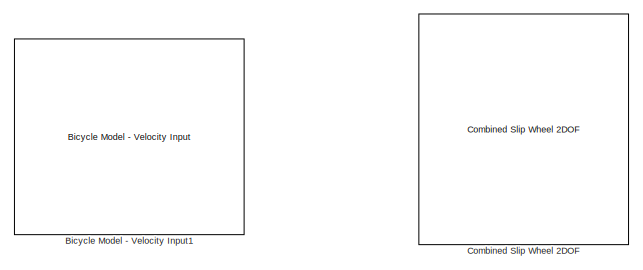
[diagram: root canvas - part 1/8, top center region]
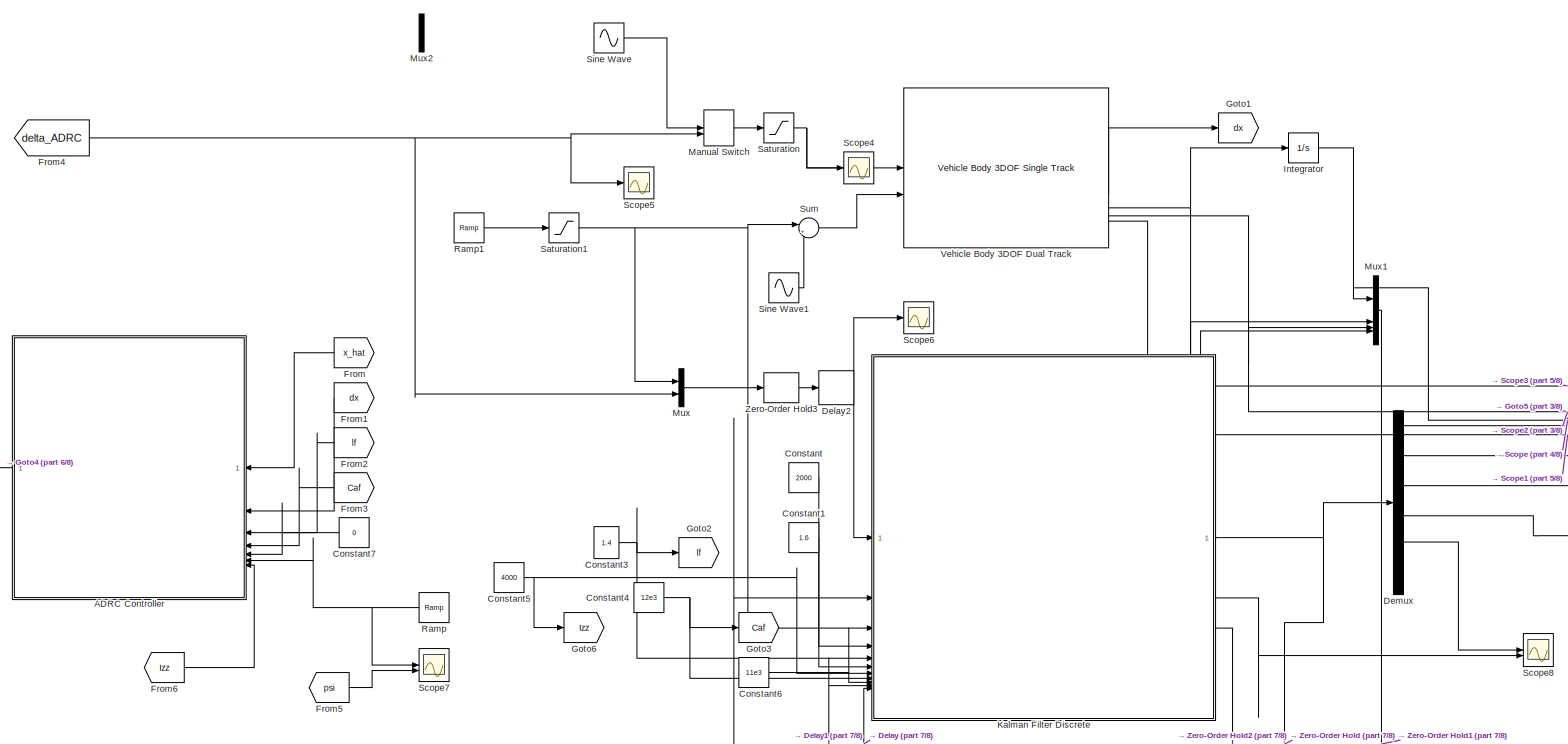
[diagram: root canvas - part 2/8, full width, middle band]
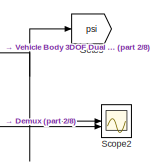
[diagram: root canvas - part 3/8, middle right region]
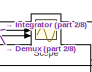
[diagram: root canvas - part 4/8, middle right region]
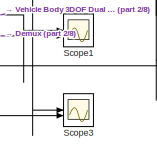
[diagram: root canvas - part 5/8, middle right region]
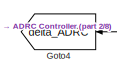
[diagram: root canvas - part 6/8, middle left region]
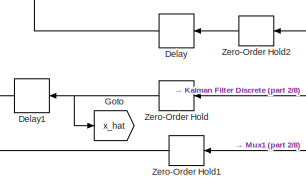
[diagram: root canvas - part 7/8, bottom center region]
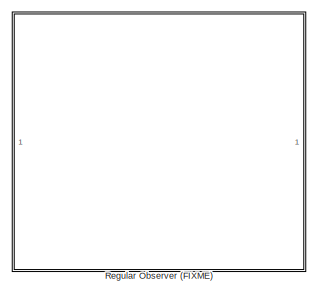
[diagram: root canvas - part 8/8, bottom center region]
MODEL slx_97108f222ab0
KIND model
CONFIG AbsTol = auto
CONFIG EnableMultiTasking = off
CONFIG FixedStep = auto
CONFIG MaxStep = auto
CONFIG MinStep = auto
CONFIG RelTol = 1e-3
CONFIG SampleTimeConstraint = Unconstrained
CONFIG SolverName = VariableStepAuto
CONFIG StartTime = 0.0
CONFIG StopTime = 100
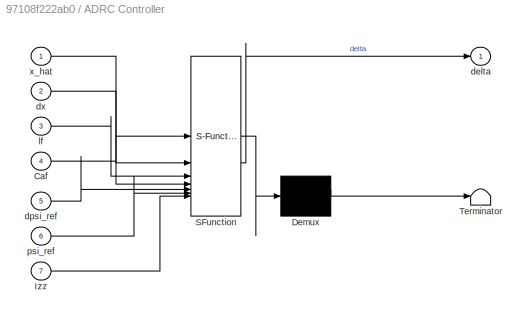
BLOCK [SubSystem] ADRC Controller
  ErrorFcn = Stateflow.Translate.translate
  PermitHierarchicalResolution = ExplicitOnly
  SFBlockType = MATLAB Function
  TreatAsAtomicUnit = on
BLOCK [Demux] ADRC Controller/ Demux 
  Outputs = 1
BLOCK [S-Function] ADRC Controller/ SFunction 
  EnableBusSupport = on
  FunctionName = sf_sfun
  PortCounts = [7 2]
  SFcnIsStateOwnerBlock = off
  SFunctionDeploymentMode = off
  Tag = Stateflow S-Function 3
BLOCK [Terminator] ADRC Controller/ Terminator 
BLOCK [Inport] ADRC Controller/Caf
  Port = 4
BLOCK [Inport] ADRC Controller/Izz
  Port = 7
BLOCK [Outport] ADRC Controller/delta
BLOCK [Inport] ADRC Controller/dpsi_ref
  Port = 5
BLOCK [Inport] ADRC Controller/dx
  Port = 2
BLOCK [Inport] ADRC Controller/lf
  Port = 3
BLOCK [Inport] ADRC Controller/psi_ref
  Port = 6
BLOCK [Inport] ADRC Controller/x_hat
BLOCK [Reference] Bicycle Model - Velocity Input1  REF=autolibshared/Bicycle Model - Velocity Input
  Commented = on
  LibrarySourceBlock = vehdynlibeom/Bicycle Model - Velocity Input
  SourceBlock = autolibshared/Bicycle Model - Velocity Input
  SourceType = Vehicle Body 3DOF Lateral
BLOCK [Reference] Combined Slip Wheel 2DOF  REF=vehdynlibtire/Combined Slip Wheel 2DOF
  Commented = on
  SourceBlock = vehdynlibtire/Combined Slip Wheel 2DOF
  SourceType = Combined Slip Wheel 2DOF
BLOCK [Constant] Constant
  Value = 2000
BLOCK [Constant] Constant1
  Value = 1.6
BLOCK [Constant] Constant3
  Value = 1.4
BLOCK [Constant] Constant4
  Value = 12e3
BLOCK [Constant] Constant5
  Value = 4000
BLOCK [Constant] Constant6
  Value = 11e3
BLOCK [Constant] Constant7
  Value = 0
BLOCK [Delay] Delay
  DelayLength = 1
  InputPortMap = u0
  SampleTime = 0.01
BLOCK [Delay] Delay1
  DelayLength = 1
  InputPortMap = u0
  SampleTime = 0.01
BLOCK [Delay] Delay2
  DelayLength = 1
  InputPortMap = u0
  SampleTime = 0.01
BLOCK [Demux] Demux
  Outputs = 6
BLOCK [From] From
  GotoTag = x_hat
BLOCK [From] From1
  GotoTag = dx
BLOCK [From] From2
  GotoTag = lf
BLOCK [From] From3
  GotoTag = Caf
BLOCK [From] From4
  GotoTag = delta_ADRC
BLOCK [From] From5
  GotoTag = psi
BLOCK [From] From6
  GotoTag = Izz
BLOCK [Goto] Goto
  GotoTag = x_hat
BLOCK [Goto] Goto1
  GotoTag = dx
BLOCK [Goto] Goto2
  GotoTag = lf
BLOCK [Goto] Goto3
  GotoTag = Caf
BLOCK [Goto] Goto4
  GotoTag = delta_ADRC
BLOCK [Goto] Goto5
  GotoTag = psi
BLOCK [Goto] Goto6
  GotoTag = Izz
BLOCK [Integrator] Integrator
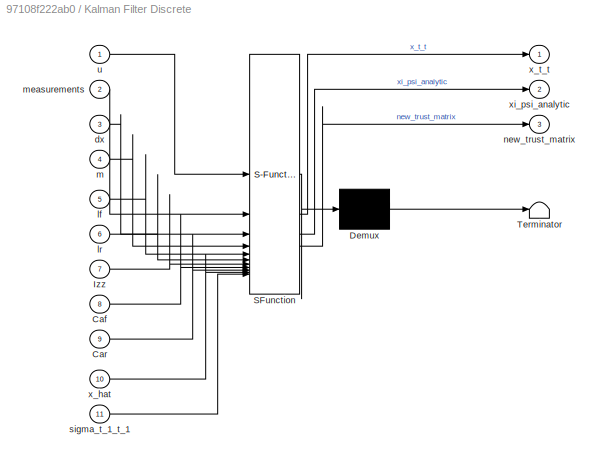
BLOCK [SubSystem] Kalman Filter Discrete
  ErrorFcn = Stateflow.Translate.translate
  PermitHierarchicalResolution = ExplicitOnly
  SFBlockType = MATLAB Function
  TreatAsAtomicUnit = on
BLOCK [Demux] Kalman Filter Discrete/ Demux 
  Outputs = 1
BLOCK [S-Function] Kalman Filter Discrete/ SFunction 
  EnableBusSupport = on
  FunctionName = sf_sfun
  PortCounts = [11 4]
  SFcnIsStateOwnerBlock = off
  SFunctionDeploymentMode = off
  Tag = Stateflow S-Function 2
BLOCK [Terminator] Kalman Filter Discrete/ Terminator 
BLOCK [Inport] Kalman Filter Discrete/Caf
  Port = 8
BLOCK [Inport] Kalman Filter Discrete/Car
  Port = 9
BLOCK [Inport] Kalman Filter Discrete/Izz
  Port = 7
BLOCK [Inport] Kalman Filter Discrete/dx
  Port = 3
BLOCK [Inport] Kalman Filter Discrete/lf
  Port = 5
BLOCK [Inport] Kalman Filter Discrete/lr
  Port = 6
BLOCK [Inport] Kalman Filter Discrete/m
  Port = 4
BLOCK [Inport] Kalman Filter Discrete/measurements
  Port = 2
BLOCK [Outport] Kalman Filter Discrete/new_trust_matrix
  Port = 3
BLOCK [Inport] Kalman Filter Discrete/sigma_t_1_t_1
  Port = 11
BLOCK [Inport] Kalman Filter Discrete/u
BLOCK [Inport] Kalman Filter Discrete/x_hat
  Port = 10
BLOCK [Outport] Kalman Filter Discrete/x_t_t
BLOCK [Outport] Kalman Filter Discrete/xi_psi_analytic
  Port = 2
BLOCK [ManualSwitch] Manual Switch
  CurrentSetting = 0
BLOCK [Mux] Mux
  DisplayOption = bar
  Inputs = 2
BLOCK [Mux] Mux1
  DisplayOption = bar
BLOCK [Mux] Mux2
  DisplayOption = bar
  Inputs = 2
BLOCK [Reference] Ramp  REF=simulink/Sources/Ramp
  SourceBlock = simulink/Sources/Ramp
  SourceType = Ramp
BLOCK [Reference] Ramp1  REF=simulink/Sources/Ramp
  SourceBlock = simulink/Sources/Ramp
  SourceType = Ramp
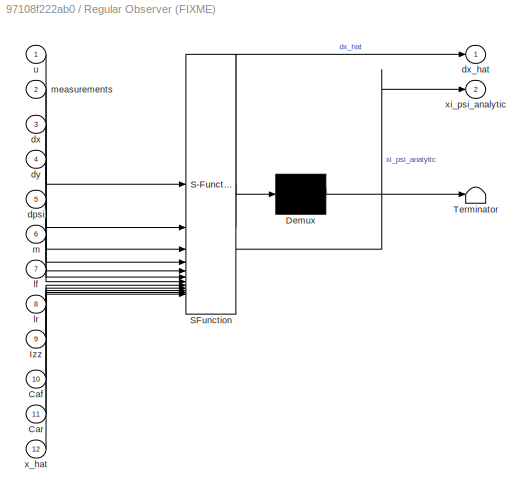
BLOCK [SubSystem] Regular Observer (FIXME)
  Commented = on
  ErrorFcn = Stateflow.Translate.translate
  PermitHierarchicalResolution = ExplicitOnly
  SFBlockType = MATLAB Function
  TreatAsAtomicUnit = on
BLOCK [Demux] Regular Observer (FIXME)/ Demux 
  Outputs = 1
BLOCK [S-Function] Regular Observer (FIXME)/ SFunction 
  EnableBusSupport = on
  FunctionName = sf_sfun
  PortCounts = [12 3]
  SFcnIsStateOwnerBlock = off
  SFunctionDeploymentMode = off
  Tag = Stateflow S-Function 1
BLOCK [Terminator] Regular Observer (FIXME)/ Terminator 
BLOCK [Inport] Regular Observer (FIXME)/Caf
  Port = 10
BLOCK [Inport] Regular Observer (FIXME)/Car
  Port = 11
BLOCK [Inport] Regular Observer (FIXME)/Izz
  Port = 9
BLOCK [Inport] Regular Observer (FIXME)/dpsi
  Port = 5
BLOCK [Inport] Regular Observer (FIXME)/dx
  Port = 3
BLOCK [Outport] Regular Observer (FIXME)/dx_hat
BLOCK [Inport] Regular Observer (FIXME)/dy
  Port = 4
BLOCK [Inport] Regular Observer (FIXME)/lf
  Port = 7
BLOCK [Inport] Regular Observer (FIXME)/lr
  Port = 8
BLOCK [Inport] Regular Observer (FIXME)/m
  Port = 6
BLOCK [Inport] Regular Observer (FIXME)/measurements
  Port = 2
BLOCK [Inport] Regular Observer (FIXME)/u
BLOCK [Inport] Regular Observer (FIXME)/x_hat
  Port = 12
BLOCK [Outport] Regular Observer (FIXME)/xi_psi_analytic
  Port = 2
BLOCK [Saturate] Saturation
  LowerLimit = -0.2
  UpperLimit = 0.2
BLOCK [Saturate] Saturation1
  UpperLimit = 100
BLOCK [Scope] Scope
  Floating = off
  NumInputPorts = 2
  ScopeSpecificationString = Simulink.scopes.TimeScopeBlockCfg('CurrentConfiguration', extmgr.ConfigurationSet(extmgr.Configuration('Core','General UI',true),extmgr.Configuration('Core','Source UI',true),extmgr.Configuration('Sources','WiredSimulink',true),extmgr.Configuration('Visuals','Time Domain',true,'SerializedDisplays',{struct('MinYLimReal','-420.89878','MaxYLimReal','46.76776','YLabelReal','','MinYLimMag',' 0.00000','...<+1513ch>
BLOCK [Scope] Scope1
  Floating = off
  NumInputPorts = 2
  ScopeSpecificationString = Simulink.scopes.TimeScopeBlockCfg('CurrentConfiguration', extmgr.ConfigurationSet(extmgr.Configuration('Core','General UI',true),extmgr.Configuration('Core','Source UI',true),extmgr.Configuration('Sources','WiredSimulink',true,'DataLoggingVariableName','ScopeData1'),extmgr.Configuration('Visuals','Time Domain',true,'SerializedDisplays',{struct('MinYLimReal','-18.08646','MaxYLimReal','2.01286','YLa...<+1609ch>
BLOCK [Scope] Scope2
  Floating = off
  NumInputPorts = 2
  ScopeSpecificationString = Simulink.scopes.TimeScopeBlockCfg('CurrentConfiguration', extmgr.ConfigurationSet(extmgr.Configuration('Core','General UI',true),extmgr.Configuration('Core','Source UI',true),extmgr.Configuration('Sources','WiredSimulink',true,'DataLoggingVariableName','ScopeData2'),extmgr.Configuration('Visuals','Time Domain',true,'SerializedDisplays',{struct('MinYLimReal','-0.24926','MaxYLimReal','2.24332','YLab...<+1545ch>
BLOCK [Scope] Scope3
  Floating = off
  NumInputPorts = 2
  ScopeSpecificationString = Simulink.scopes.TimeScopeBlockCfg('CurrentConfiguration', extmgr.ConfigurationSet(extmgr.Configuration('Core','General UI',true),extmgr.Configuration('Core','Source UI',true),extmgr.Configuration('Sources','WiredSimulink',true,'DataLoggingVariableName','ScopeData3'),extmgr.Configuration('Visuals','Time Domain',true,'SerializedDisplays',{struct('MinYLimReal','-0.493','MaxYLimReal','0.05478','YLabel...<+1554ch>
BLOCK [Scope] Scope4
  Floating = off
  NumInputPorts = 1
  ScopeSpecificationString = Simulink.scopes.TimeScopeBlockCfg('CurrentConfiguration', extmgr.ConfigurationSet(extmgr.Configuration('Core','General UI',true),extmgr.Configuration('Core','Source UI',true),extmgr.Configuration('Sources','WiredSimulink',true,'DataLoggingVariableName','ScopeData1'),extmgr.Configuration('Visuals','Time Domain',true,'SerializedDisplays',{struct('MinYLimReal','-0.0237','MaxYLimReal','0.00936','YLabe...<+1508ch>
BLOCK [Scope] Scope5
  Floating = off
  NumInputPorts = 1
  ScopeSpecificationString = Simulink.scopes.TimeScopeBlockCfg('CurrentConfiguration', extmgr.ConfigurationSet(extmgr.Configuration('Core','General UI',true),extmgr.Configuration('Core','Source UI',true),extmgr.Configuration('Sources','WiredSimulink',true,'DataLoggingVariableName','ScopeData3'),extmgr.Configuration('Visuals','Time Domain',true,'SerializedDisplays',{struct('MinYLimReal','-0.0237','MaxYLimReal','0.00936','YLabe...<+1480ch>
BLOCK [Scope] Scope6
  Floating = off
  NumInputPorts = 1
  ScopeSpecificationString = Simulink.scopes.TimeScopeBlockCfg('CurrentConfiguration', extmgr.ConfigurationSet(extmgr.Configuration('Core','General UI',true),extmgr.Configuration('Core','Source UI',true),extmgr.Configuration('Sources','WiredSimulink',true,'DataLoggingVariableName','ScopeData2'),extmgr.Configuration('Visuals','Time Domain',true,'SerializedDisplays',{struct('MinYLimReal','-12.52294','MaxYLimReal','112.50255','Y...<+1531ch>
BLOCK [Scope] Scope7
  Floating = off
  NumInputPorts = 2
  ScopeSpecificationString = Simulink.scopes.TimeScopeBlockCfg('CurrentConfiguration', extmgr.ConfigurationSet(extmgr.Configuration('Core','General UI',true),extmgr.Configuration('Core','Source UI',true),extmgr.Configuration('Sources','WiredSimulink',true,'DataLoggingVariableName','ScopeData4'),extmgr.Configuration('Visuals','Time Domain',true,'SerializedDisplays',{struct('MinYLimReal','-0.25','MaxYLimReal','2.25','YLabelReal...<+1514ch>
BLOCK [Scope] Scope8
  Floating = off
  NumInputPorts = 2
  ScopeSpecificationString = Simulink.scopes.TimeScopeBlockCfg('CurrentConfiguration', extmgr.ConfigurationSet(extmgr.Configuration('Core','General UI',true),extmgr.Configuration('Core','Source UI',true),extmgr.Configuration('Sources','WiredSimulink',true,'DataLoggingVariableName','ScopeData5'),extmgr.Configuration('Visuals','Time Domain',true,'SerializedDisplays',{struct('MinYLimReal','-0.07376','MaxYLimReal','0.21176','YLab...<+1526ch>
BLOCK [Sin] Sine Wave
  Amplitude = 0
  Frequency = 3
  SampleTime = 0
BLOCK [Sin] Sine Wave1
  SampleTime = 0
BLOCK [Sum] Sum
  Inputs = |++
BLOCK [Reference] Vehicle Body 3DOF Dual Track  REF=autolibshared/Vehicle Body 3DOF Single Track
  LibrarySourceBlock = vehdynlibeom/Vehicle Body 3DOF Dual Track
  SourceBlock = autolibshared/Vehicle Body 3DOF Single Track
  SourceType = Vehicle Body 3DOF Lateral
BLOCK [ZeroOrderHold] Zero-Order Hold
  SampleTime = 0.01
BLOCK [ZeroOrderHold] Zero-Order Hold1
  SampleTime = 0.01
BLOCK [ZeroOrderHold] Zero-Order Hold2
  SampleTime = 0.01
BLOCK [ZeroOrderHold] Zero-Order Hold3
  SampleTime = 0.01
LINE ADRC Controller:1 -> Goto4:1
LINE Constant1:1 -> Kalman Filter Discrete:6
NET Constant3:1 -> Goto2:1, Kalman Filter Discrete:5
NET Constant4:1 -> Goto3:1, Kalman Filter Discrete:8
NET Constant5:1 -> Goto6:1, Kalman Filter Discrete:7
LINE Constant6:1 -> Kalman Filter Discrete:9
LINE Constant7:1 -> ADRC Controller:5
LINE Constant:1 -> Kalman Filter Discrete:4
LINE Delay1:1 -> Kalman Filter Discrete:10
NET Delay2:1 -> Kalman Filter Discrete:1, Scope6:1
LINE Delay:1 -> Kalman Filter Discrete:11
LINE Demux:1 -> Scope:2
LINE Demux:2 -> Scope1:2
LINE Demux:3 -> Scope2:2
LINE Demux:4 -> Scope3:2
LINE Demux:5 -> Scope8:1
LINE From1:1 -> ADRC Controller:2
LINE From2:1 -> ADRC Controller:3
LINE From3:1 -> ADRC Controller:4
NET From4:1 -> Manual Switch:2, Mux:2, Scope5:1
LINE From5:1 -> Scope7:2
LINE From6:1 -> ADRC Controller:7
LINE From:1 -> ADRC Controller:1
NET Integrator:1 -> Mux1:1, Scope:1
NET Kalman Filter Discrete:1 -> Demux:1, Zero-Order Hold:1
LINE Kalman Filter Discrete:2 -> Scope8:2
LINE Kalman Filter Discrete:3 -> Zero-Order Hold2:1
LINE Manual Switch:1 -> Saturation:1
LINE Mux1:1 -> Zero-Order Hold1:1
LINE Mux:1 -> Zero-Order Hold3:1
LINE Ramp1:1 -> Saturation1:1
NET Ramp:1 -> ADRC Controller:6, Scope7:1
NET Saturation1:1 -> Kalman Filter Discrete:3, Mux:1, Sum:1
NET Saturation:1 -> Scope4:1, Vehicle Body 3DOF Dual Track:1
LINE Sine Wave1:1 -> Sum:2
LINE Sine Wave:1 -> Manual Switch:1
LINE Sum:1 -> Vehicle Body 3DOF Dual Track:2
LINE Vehicle Body 3DOF Dual Track:2 -> Goto1:1
NET Vehicle Body 3DOF Dual Track:3 -> Integrator:1, Mux1:2, Scope1:1
NET Vehicle Body 3DOF Dual Track:4 -> Goto5:1, Mux1:3, Scope2:1
NET Vehicle Body 3DOF Dual Track:5 -> Mux1:4, Scope3:1
LINE Zero-Order Hold1:1 -> Kalman Filter Discrete:2
LINE Zero-Order Hold2:1 -> Delay:1
LINE Zero-Order Hold3:1 -> Delay2:1
NET Zero-Order Hold:1 -> Delay1:1, Goto:1
note: NET lines group one-source signal fan-out (src -> all destinations, sorted); 1:1 wires keep LINE
CHART Regular Observer (FIXME) states=1 transitions=1
  STATE_LABEL 'eML_blk_kernel()'
  STATE_LABEL 'SCRIPT:\nfunction [dx_hat, xi_psi_analytic]= fcn(u, measurements, dx, dy, dpsi, m, lf, lr, Izz, Caf, Car, x_hat)\n\nL1 = 38*4; L2 = 39*4; L3 = 40*4; L4 = 37*4;\n\nA_aug = [\n    0, 1, 0, 0, 0, 0;\n    0, 0, 0, 0, 0, 1;\n    0, 0, 0, 1, 0, 0;\n    0, 0, 0, 0, 1, 0;\n    0, 0, 0, 0, 0, 0;\n    0, 0, 0, 0, 0, 0\n];\n\nC_aug = [\n   eye(4), zeros(4,2);\n];\n\nL = [\n    L1, 0, 0, 0;\n    0, L2, 0, 0;\n    0, 0, L3, 0;\n   ...<+599ch>'
CHART Kalman Filter Discrete states=1 transitions=1
  STATE_LABEL 'eML_blk_kernel()'
  STATE_LABEL 'SCRIPT:\nfunction [x_t_t, xi_psi_analytic, new_trust_matrix]= fcn(u, measurements, dx, m, lf, lr, Izz, Caf, Car, x_hat, sigma_t_1_t_1)\n\nsigma_y_given_x = eye(4)*0.05; % 4 states in the measurements vector\nsigma_x = eye(6)*0.05;\n\n% Retrieve dy, dz from measurements\ndy = measurements(2);\ndpsi = measurements(4);\n\nT = 0.01; % seconds\n\nA_aug = [\n    0, 1, 0, 0, 0, 0;\n    0, 0, 0, 0, 0, 1;\n    0, 0, 0, 1...<+1185ch>'
CHART ADRC Controller states=1 transitions=1
  STATE_LABEL 'eML_blk_kernel()'
  STATE_LABEL 'SCRIPT:\nfunction delta = fcn(x_hat, dx, lf, Caf, dpsi_ref, psi_ref, Izz)\n\n\nK1 = 24;\nK2 = 80;\n\ndy = x_hat(2);\npsi = x_hat(3);\ndpsi = x_hat(4);\nxi_hat_ddpsi = x_hat(5); \n\n% ADRC Control Law:\ndelta = ((dx + dy + dpsi*lf)*Izz / (2*lf*Caf*max(1,dx))) * (-xi_hat_ddpsi + 0 - K1*(dpsi - dpsi_ref) - K2*(psi - psi_ref));\n'
CHART  states=0 transitions=0
CHART  states=0 transitions=0
CHART  states=0 transitions=0
